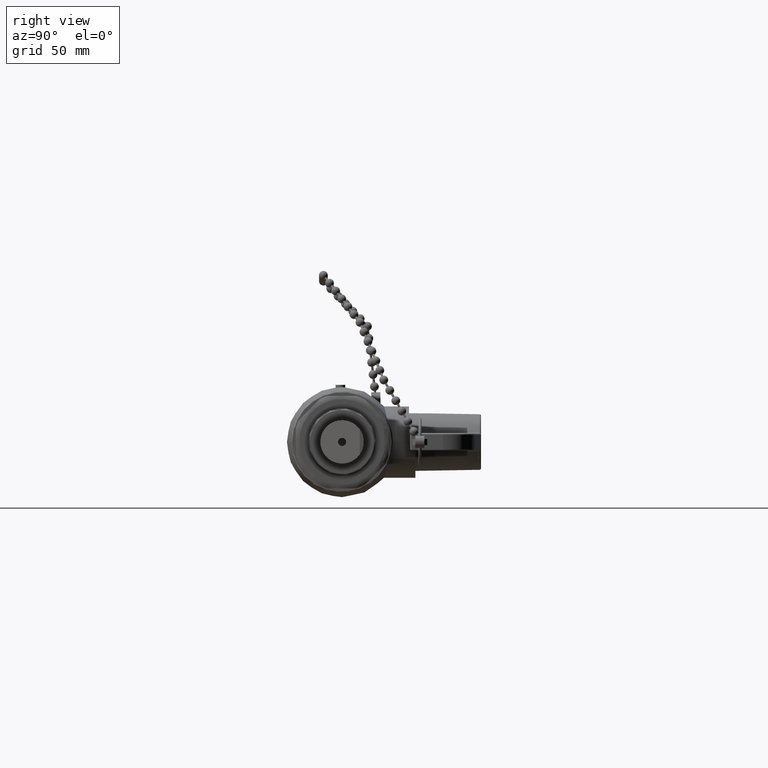
[diagram: clean part render]
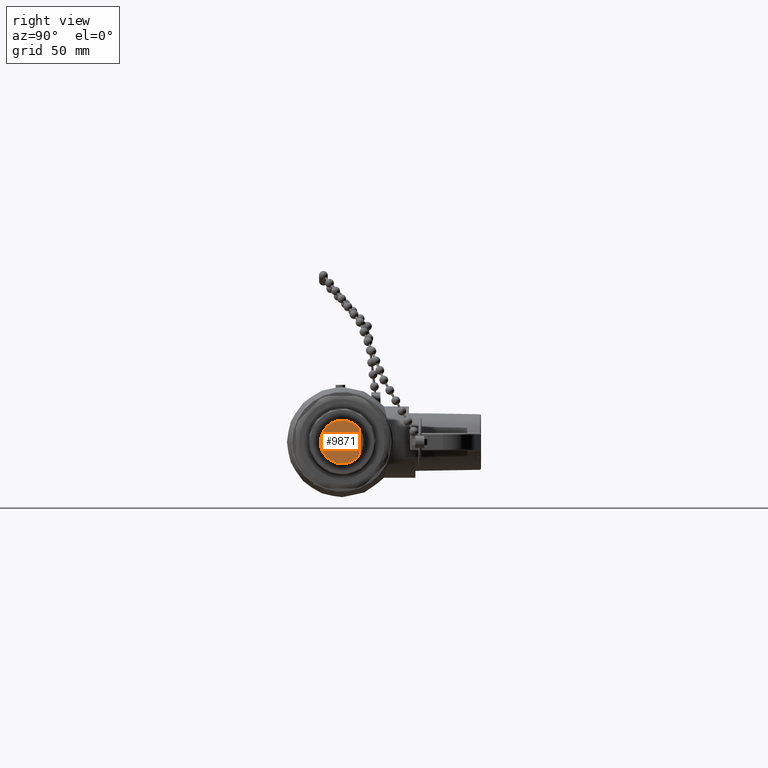
[diagram: same view with one face highlighted and labeled with its STEP entity id]
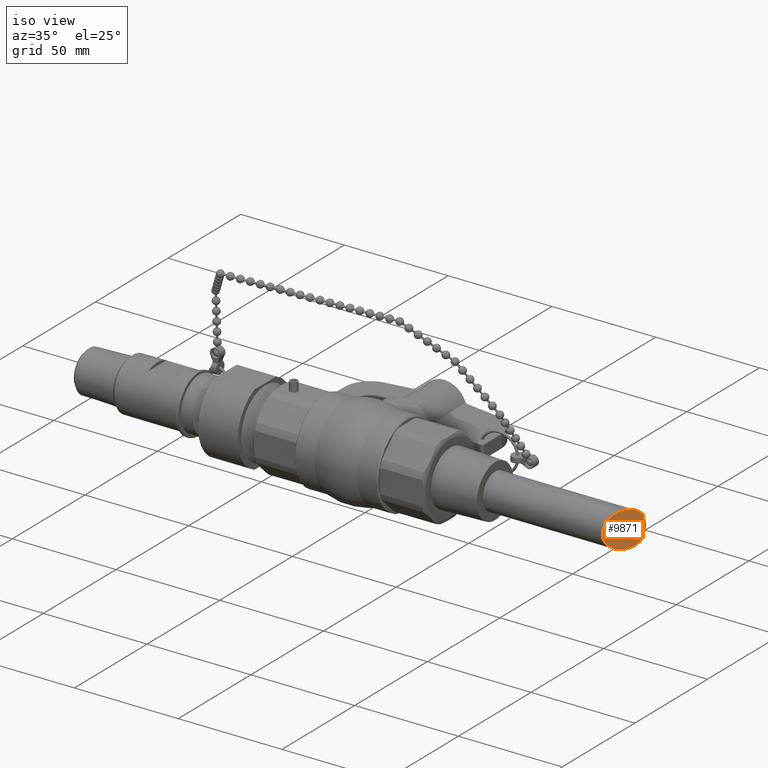
[diagram: same view with one face highlighted and labeled with its STEP entity id]
A machine part, right view. The second image highlights one B-rep face of the part: STEP entity #9871.
A second angle (iso view) of the same face is appended — the face is thin or edge-on in the first view.
In plain terms, the highlighted planar face has unit normal (-0.866, 0.5, -0).
Its self-contained STEP definition (entity closure, byte-faithful):
#479=CARTESIAN_POINT('',(5.093000000000000,0.274500000000002,-0.196356818063442));
#480=VERTEX_POINT('',#479);
#481=CARTESIAN_POINT('',(5.093000000000000,0.274500000000002,0.196356818063443));
#482=VERTEX_POINT('',#481);
#483=CARTESIAN_POINT('',(4.934517351107447,6.179125E-016,4.551475E-016));
#484=DIRECTION('',(-0.866025403784439,0.500000000000001,-1.239986E-016));
#485=DIRECTION('',(0.500000000000000,0.866025403784438,7.159060E-017));
#486=AXIS2_PLACEMENT_3D('',#483,#484,#485);
#487=ELLIPSE('',#486,0.389711431702998,0.337500000000001);
#488=EDGE_CURVE('',#480,#482,#487,.T.);
#9829=CARTESIAN_POINT('',(4.898432959283095,-0.062499999999999,4.423268E-016));
#9830=VERTEX_POINT('',#9829);
#9831=CARTESIAN_POINT('',(4.934517351107447,6.179125E-016,4.551475E-016));
#9832=DIRECTION('',(0.866025403784439,-0.500000000000001,1.239986E-016));
#9833=DIRECTION('',(0.500000000000000,0.866025403784438,7.159060E-017));
#9834=AXIS2_PLACEMENT_3D('',#9831,#9832,#9833);
#9835=ELLIPSE('',#9834,0.072168783648703,0.062500000000000);
#9836=EDGE_CURVE('',#9830,#9830,#9835,.T.);
#9849=CARTESIAN_POINT('',(5.093000000000000,0.274500000000002,0.196356818063443));
#9850=DIRECTION('',(0.0,0.0,-1.0));
#9851=VECTOR('',#9850,0.392713636126885);
#9852=LINE('',#9849,#9851);
#9853=EDGE_CURVE('',#482,#480,#9852,.T.);
#9859=CARTESIAN_POINT('',(5.093000000000000,0.274500000000002,4.778392E-016));
#9860=DIRECTION('',(-0.866025403784438,0.500000000000001,-1.239986E-016));
#9861=DIRECTION('',(0.0,0.0,1.0));
#9862=AXIS2_PLACEMENT_3D('',#9859,#9860,#9861);
#9863=PLANE('',#9862);
#9864=ORIENTED_EDGE('',*,*,#488,.F.);
#9865=ORIENTED_EDGE('',*,*,#9853,.F.);
#9866=EDGE_LOOP('',(#9864,#9865));
#9867=FACE_OUTER_BOUND('',#9866,.T.);
#9868=ORIENTED_EDGE('',*,*,#9836,.F.);
#9869=EDGE_LOOP('',(#9868));
#9870=FACE_BOUND('',#9869,.T.);
#9871=ADVANCED_FACE('',(#9867,#9870),#9863,.F.);